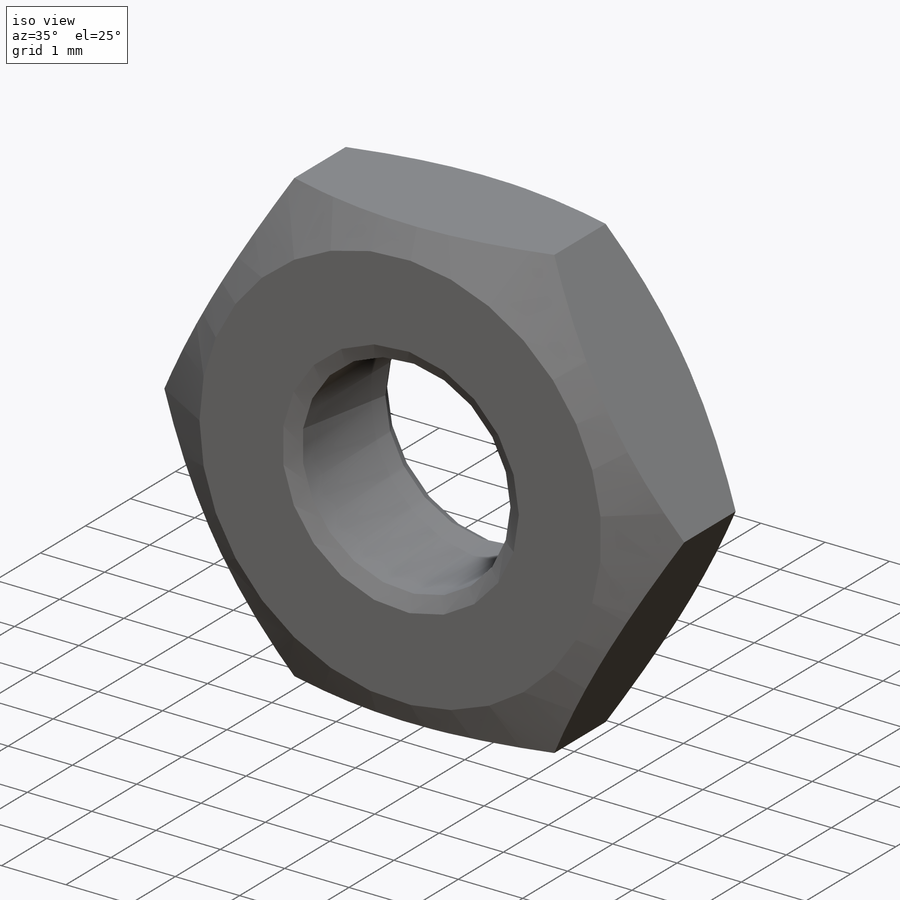
[diagram: iso view]
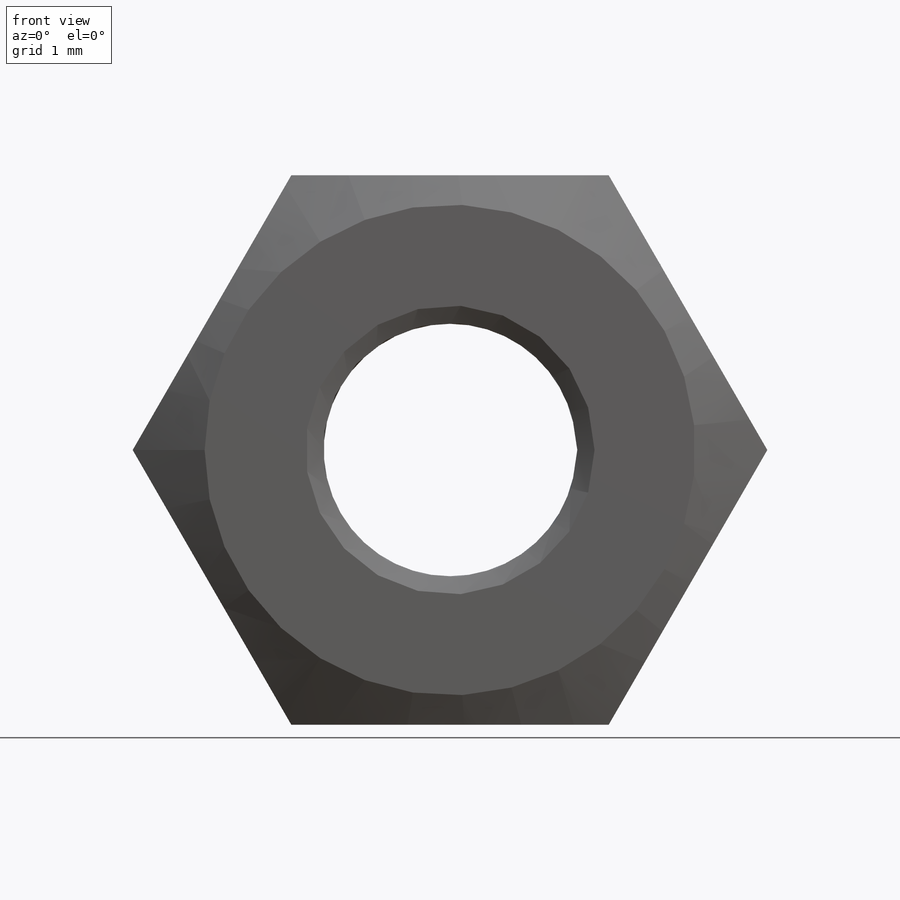
[diagram: front view]
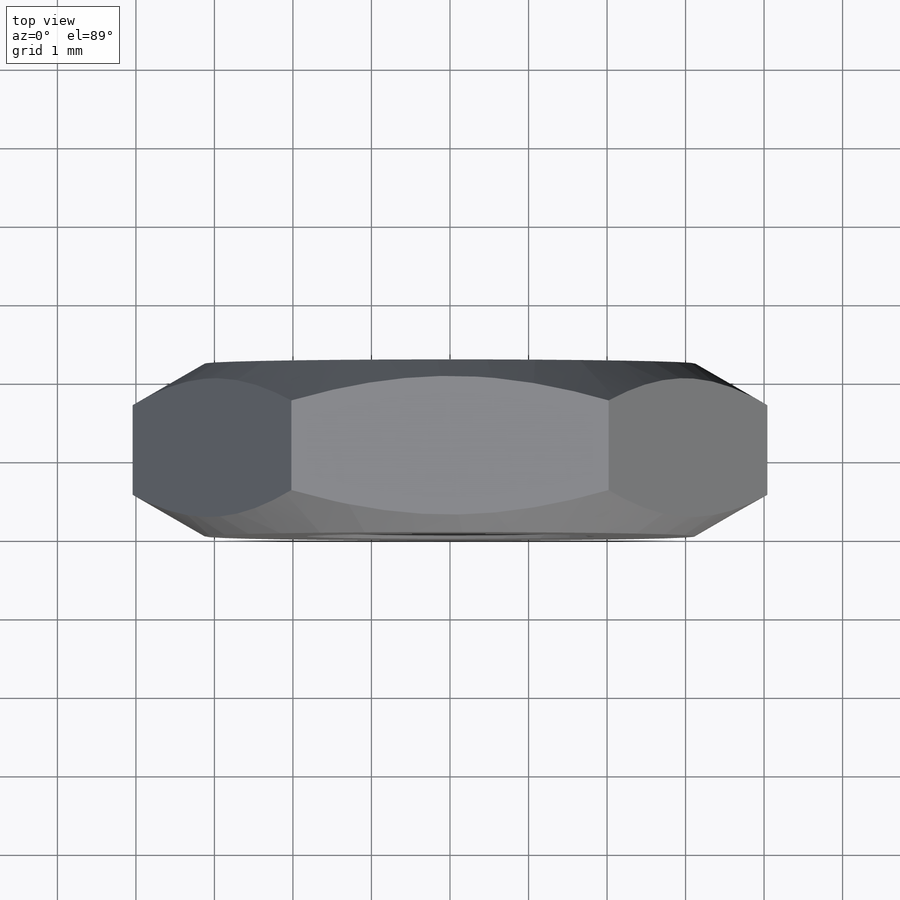
[diagram: top view]
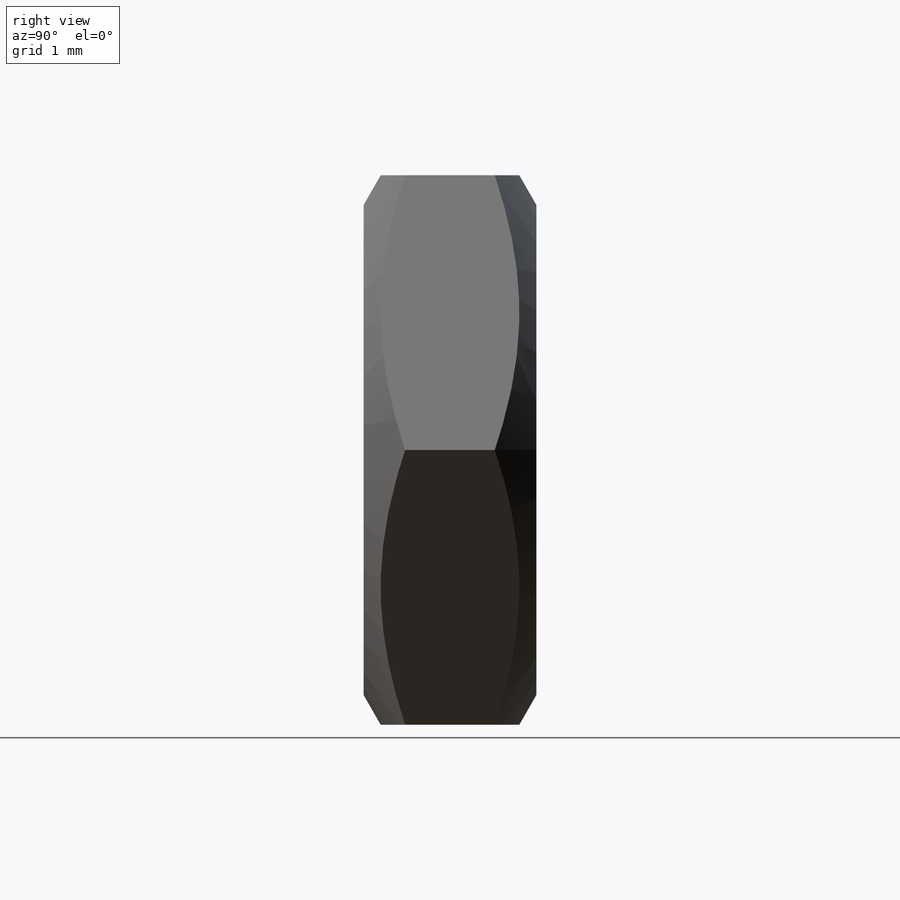
[diagram: right view]
SOLIDWORKS PART (.sldprt)
format: sldprt  version: not decoded by parser v0  size: 177,152 bytes
history: native  units: mm
features: sketch x3, cut_revolve x2, material x1, extrude x1, thread x1, chamfer x1, pattern_linear x1 (+15 scaffold rows collapsed; 1 parser-record rows omitted)
feature tree (26):
  parser-record x1  (decoder bookkeeping rows leaked as tree rows — omitted from the tree; the rows remain in map.json)
  scaffold x15  (default folders/planes/origin — collapsed)
  material  "材质 <未指定>"
  sketch  "Sketch1"  dims[D=3.242mm s=7.0mm]
  extrude  "BaseNut"  [1 undecoded]
  thread  "ThreadCosmetic1"  Diameter=4mm D=4mm m=2.2mm  [1 undecoded]
  sketch  "Sketch2"  dims[c1.dw=6.25mm c1.D2=~1.739344mm c2.D2=20.0deg c2.纵向尺寸=~1.115703mm c3.D2=2.5mm c3.D1=~2.231406mm c4.D1=30.0deg c4.D2=1.1mm]
  cut_revolve  "Double-Chamfer"  Angle=360deg
  chamfer  "EndChamfer"  Distance=0.22mm Angle=30deg
  sketch  "Sketch3"  dims[D1=0.379mm D2=3.242mm]
  cut_revolve  "Cut-Revolve10"  Angle=360deg
  pattern_linear  "LPattern10"  Count1=4 Count2=1 Spacing1=0.4548mm Spacing2=50mm ConfigurationName=0mm CopiedFlag=1 PartNumberID=0mm
decode coverage: 8 of 9 modeling features carry decoded parameters
note: ~ marks probable driven/reference dimensions
note: 2 parameter values undecoded
note: suppression state not decoded; provenance and decode notes live in map.json
